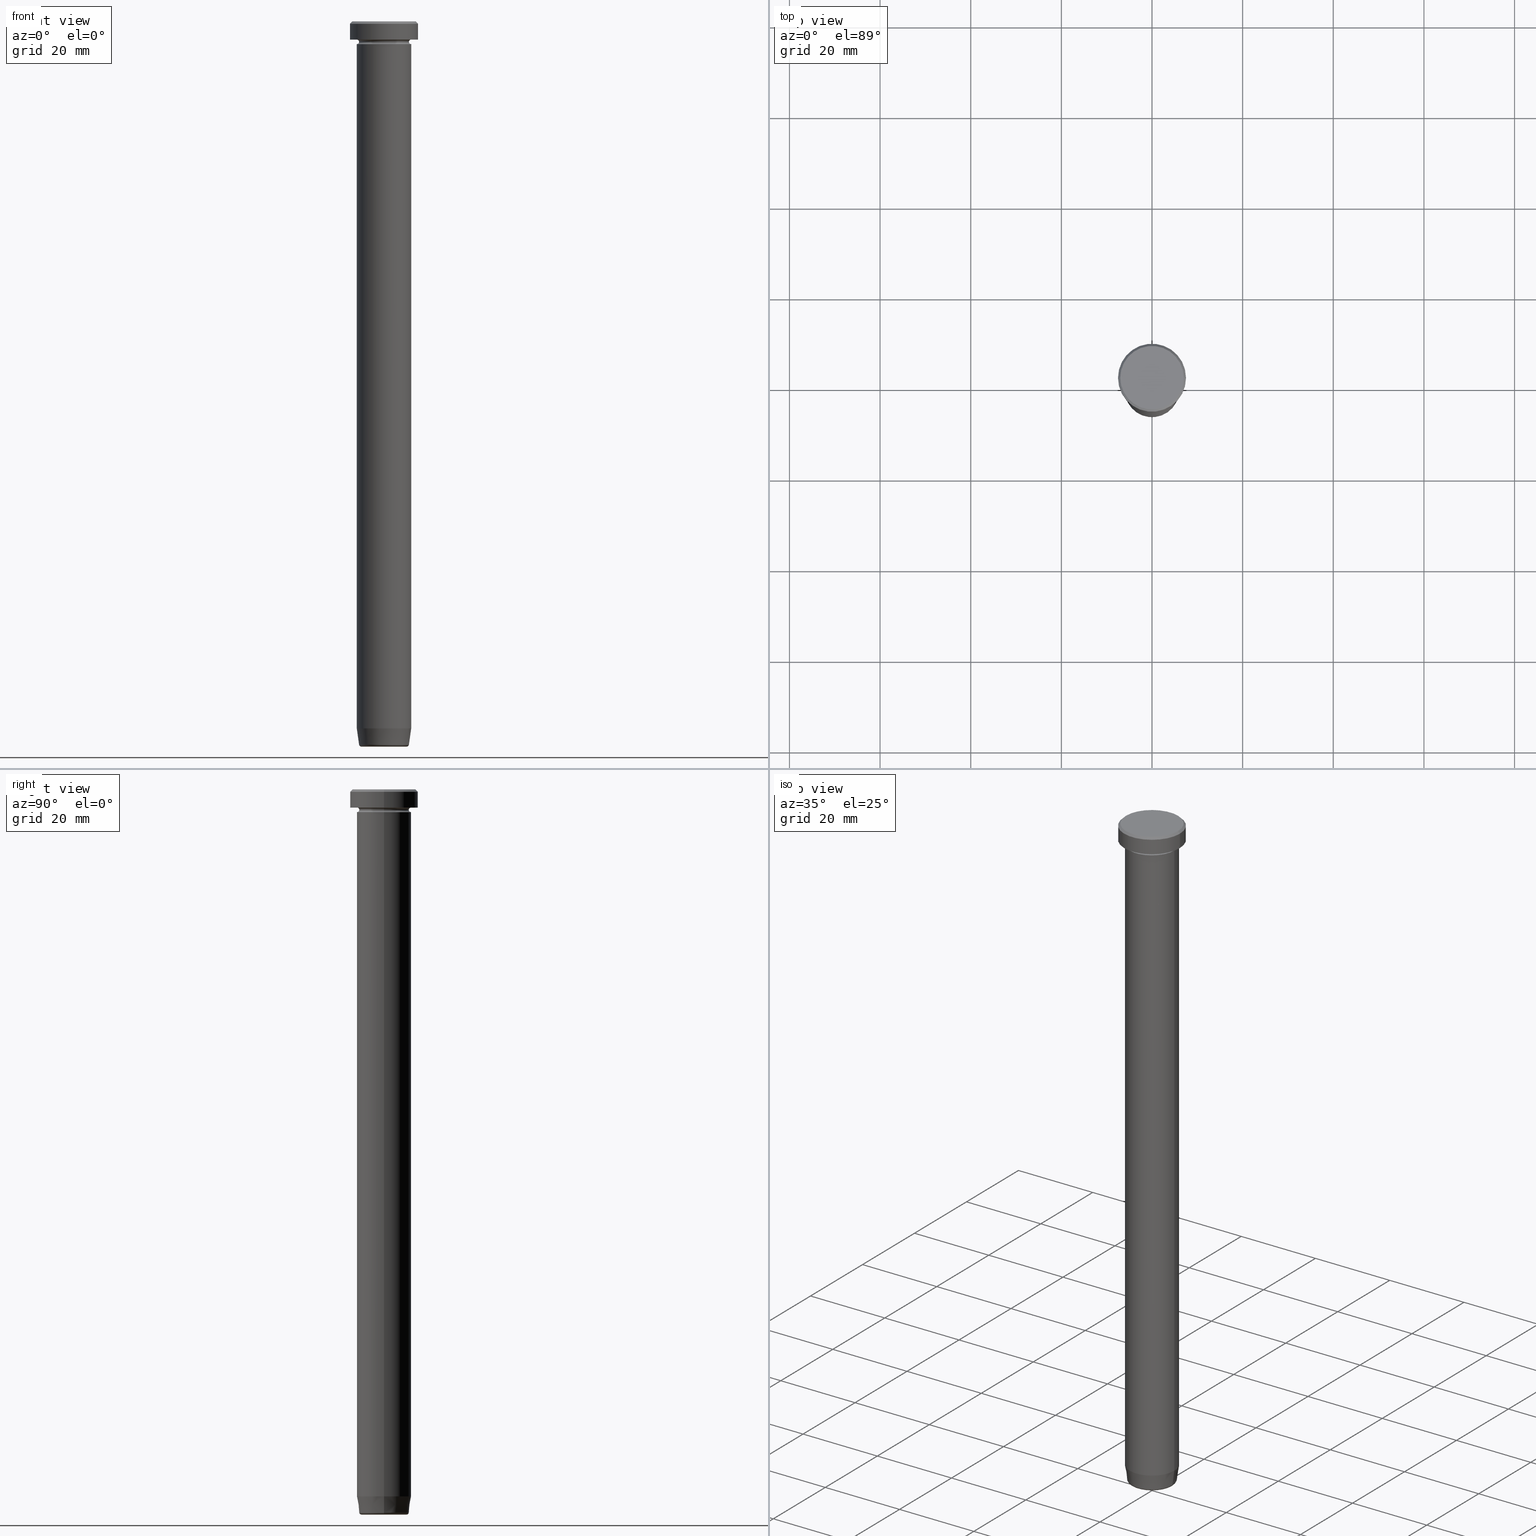
[diagram: canonical four-view strip — front | top / right | iso, engineering-drawing reading convention]
A machine part, canonical four-view strip (front | top / right | iso — engineering-drawing reading convention). The complete STEP part file that produces these views, byte-faithful:
ISO-10303-21;
HEADER;
FILE_DESCRIPTION (( 'STEP AP203' ),
    '1' );
FILE_NAME ('e191.STEP',
    '2024-01-02T19:34:42',
    ( '' ),
    ( '' ),
    'SwSTEP 2.0',
    'SolidWorks 2019',
    '' );
FILE_SCHEMA (( 'CONFIG_CONTROL_DESIGN' ));
ENDSEC;

DATA;
#1 = DIRECTION ( 'NONE',  ( -0.000000000000000000, -0.000000000000000000, 1.000000000000000000 ) ) ;
#2 = DIRECTION ( 'NONE',  ( 0.000000000000000000, 0.000000000000000000, -1.000000000000000000 ) ) ;
#3 = CARTESIAN_POINT ( 'NONE',  ( 5.498327326653105196, 0.000000000000000000, -159.5695865504800111 ) ) ;
#4 = ADVANCED_FACE ( 'NONE', ( #525 ), #209, .T. ) ;
#5 = DIRECTION ( 'NONE',  ( 0.000000000000000000, 0.000000000000000000, -1.000000000000000000 ) ) ;
#6 = DIRECTION ( 'NONE',  ( -1.000000000000000000, 0.000000000000000000, 0.000000000000000000 ) ) ;
#7 = DIRECTION ( 'NONE',  ( -1.000000000000000000, 0.000000000000000000, 0.000000000000000000 ) ) ;
#8 = DIRECTION ( 'NONE',  ( 0.000000000000000000, -1.000000000000000000, 0.000000000000000000 ) ) ;
#9 = CIRCLE ( 'NONE', #44, 6.000000000000000000 ) ;
#10 = FACE_OUTER_BOUND ( 'NONE', #118, .T. ) ;
#11 = DESIGN_CONTEXT ( 'detailed design', #553, 'design' ) ;
#12 = DIRECTION ( 'NONE',  ( -0.000000000000000000, -0.000000000000000000, 1.000000000000000000 ) ) ;
#13 = ADVANCED_FACE ( 'NONE', ( #399 ), #333, .F. ) ;
#14 = EDGE_CURVE ( 'NONE', #211, #163, #475, .T. ) ;
#15 = APPLICATION_PROTOCOL_DEFINITION ( 'international standard', 'config_control_design', 1994, #520 ) ;
#16 = ORIENTED_EDGE ( 'NONE', *, *, #494, .T. ) ;
#17 = ORIENTED_EDGE ( 'NONE', *, *, #27, .T. ) ;
#18 = AXIS2_PLACEMENT_3D ( 'NONE', #283, #270, #356 ) ;
#19 = AXIS2_PLACEMENT_3D ( 'NONE', #103, #554, #506 ) ;
#20 = DIRECTION ( 'NONE',  ( 1.000000000000000000, 0.000000000000000000, 0.000000000000000000 ) ) ;
#21 = DIRECTION ( 'NONE',  ( 1.000000000000000000, 0.000000000000000000, 0.000000000000000000 ) ) ;
#22 = DIRECTION ( 'NONE',  ( 1.000000000000000000, 0.000000000000000000, 0.000000000000000000 ) ) ;
#23 = ORIENTED_EDGE ( 'NONE', *, *, #521, .T. ) ;
#24 = ORIENTED_EDGE ( 'NONE', *, *, #598, .T. ) ;
#25 = PERSON_AND_ORGANIZATION ( #593, #579 ) ;
#26 = CIRCLE ( 'NONE', #42, 7.000000000000001776 ) ;
#27 = EDGE_CURVE ( 'NONE', #323, #163, #486, .T. ) ;
#28 = VERTEX_POINT ( 'NONE', #162 ) ;
#29 = FACE_OUTER_BOUND ( 'NONE', #451, .T. ) ;
#30 = CARTESIAN_POINT ( 'NONE',  ( -6.000000000000000000, 7.347880794884119736E-16, -5.000000000000000000 ) ) ;
#31 = PERSON_AND_ORGANIZATION ( #593, #579 ) ;
#32 = ORIENTED_EDGE ( 'NONE', *, *, #465, .T. ) ;
#33 = CIRCLE ( 'NONE', #531, 5.500000000000000000 ) ;
#34 = TOROIDAL_SURFACE ( 'NONE', #75, 5.003193292282319682, 0.5000000000000000000 ) ;
#35 = CARTESIAN_POINT ( 'NONE',  ( 0.000000000000000000, 0.000000000000000000, -159.9999999999999716 ) ) ;
#36 = EDGE_CURVE ( 'NONE', #306, #360, #455, .T. ) ;
#37 = CARTESIAN_POINT ( 'NONE',  ( -6.000000000000000000, 7.347880794884119736E-16, 0.000000000000000000 ) ) ;
#38 = ORIENTED_EDGE ( 'NONE', *, *, #472, .T. ) ;
#39 = CARTESIAN_POINT ( 'NONE',  ( 6.000000000000000000, 0.000000000000000000, 0.000000000000000000 ) ) ;
#40 = CC_DESIGN_PERSON_AND_ORGANIZATION_ASSIGNMENT ( #261, #585, ( #328 ) ) ;
#41 = FACE_OUTER_BOUND ( 'NONE', #410, .T. ) ;
#42 = AXIS2_PLACEMENT_3D ( 'NONE', #46, #379, #423 ) ;
#43 = DIRECTION ( 'NONE',  ( 1.000000000000000000, 0.000000000000000000, 0.000000000000000000 ) ) ;
#44 = AXIS2_PLACEMENT_3D ( 'NONE', #513, #412, #466 ) ;
#45 = CARTESIAN_POINT ( 'NONE',  ( 6.000000000000000000, 0.000000000000000000, 0.000000000000000000 ) ) ;
#46 = CARTESIAN_POINT ( 'NONE',  ( 0.000000000000000000, 0.000000000000000000, 0.000000000000000000 ) ) ;
#47 = DIRECTION ( 'NONE',  ( -0.000000000000000000, -0.000000000000000000, 1.000000000000000000 ) ) ;
#48 = ORIENTED_EDGE ( 'NONE', *, *, #456, .F. ) ;
#49 = CARTESIAN_POINT ( 'NONE',  ( 7.500000000000000000, 0.000000000000000000, 0.000000000000000000 ) ) ;
#50 = PLANE ( 'NONE',  #511 ) ;
#51 = VERTEX_POINT ( 'NONE', #68 ) ;
#52 = APPROVAL ( #154, 'NEUR�EN�' ) ;
#53 = DIRECTION ( 'NONE',  ( -0.000000000000000000, -0.000000000000000000, 1.000000000000000000 ) ) ;
#54 = ORIENTED_EDGE ( 'NONE', *, *, #137, .T. ) ;
#55 = CC_DESIGN_APPROVAL ( #492, ( #328 ) ) ;
#56 = ADVANCED_FACE ( 'NONE', ( #479 ), #82, .F. ) ;
#57 = CARTESIAN_POINT ( 'NONE',  ( 0.000000000000000000, 0.000000000000000000, -17.00000000000000000 ) ) ;
#58 = EDGE_CURVE ( 'NONE', #211, #576, #364, .T. ) ;
#59 = CARTESIAN_POINT ( 'NONE',  ( -6.000000000000000000, 7.347880794884119736E-16, -4.500000000000000888 ) ) ;
#60 = DIRECTION ( 'NONE',  ( 0.000000000000000000, 0.000000000000000000, 1.000000000000000000 ) ) ;
#61 = ORIENTED_EDGE ( 'NONE', *, *, #361, .T. ) ;
#62 = AXIS2_PLACEMENT_3D ( 'NONE', #374, #508, #414 ) ;
#63 = AXIS2_PLACEMENT_3D ( 'NONE', #226, #8, #2 ) ;
#64 = DIRECTION ( 'NONE',  ( -0.000000000000000000, -0.000000000000000000, 1.000000000000000000 ) ) ;
#65 = CALENDAR_DATE ( 2024, 2, 1 ) ;
#66 = ORIENTED_EDGE ( 'NONE', *, *, #382, .F. ) ;
#67 = SHAPE_DEFINITION_REPRESENTATION ( #416, #537 ) ;
#68 = CARTESIAN_POINT ( 'NONE',  ( -7.500000000000000000, 9.184850993605147944E-16, -4.000000000000000000 ) ) ;
#69 = EDGE_LOOP ( 'NONE', ( #427, #84 ) ) ;
#70 = AXIS2_PLACEMENT_3D ( 'NONE', #114, #199, #21 ) ;
#71 = ORIENTED_EDGE ( 'NONE', *, *, #282, .F. ) ;
#72 = ORIENTED_EDGE ( 'NONE', *, *, #140, .T. ) ;
#73 = AXIS2_PLACEMENT_3D ( 'NONE', #349, #535, #495 ) ;
#74 = ADVANCED_FACE ( 'NONE', ( #205 ), #595, .F. ) ;
#75 = AXIS2_PLACEMENT_3D ( 'NONE', #390, #153, #295 ) ;
#76 = DIRECTION ( 'NONE',  ( -0.000000000000000000, -0.000000000000000000, 1.000000000000000000 ) ) ;
#77 = ADVANCED_FACE ( 'NONE', ( #157 ), #388, .F. ) ;
#78 = ORIENTED_EDGE ( 'NONE', *, *, #36, .T. ) ;
#79 = CARTESIAN_POINT ( 'NONE',  ( 6.000000000000000000, 7.347880794884119736E-16, -4.500000000000000888 ) ) ;
#80 = ORIENTED_EDGE ( 'NONE', *, *, #253, .F. ) ;
#81 = CC_DESIGN_PERSON_AND_ORGANIZATION_ASSIGNMENT ( #31, #204, ( #173 ) ) ;
#82 = TOROIDAL_SURFACE ( 'NONE', #285, 6.000000000000000000, 0.5000000000000000000 ) ;
#83 = LINE ( 'NONE', #317, #468 ) ;
#84 = ORIENTED_EDGE ( 'NONE', *, *, #425, .F. ) ;
#85 = APPROVAL_PERSON_ORGANIZATION ( #170, #492, #481 ) ;
#86 = CARTESIAN_POINT ( 'NONE',  ( 0.000000000000000000, 0.000000000000000000, -4.500000000000000888 ) ) ;
#87 = CARTESIAN_POINT ( 'NONE',  ( 0.000000000000000000, 9.797174393178822896E-15, -159.9999999999999716 ) ) ;
#88 = ORIENTED_EDGE ( 'NONE', *, *, #208, .T. ) ;
#89 = DIRECTION ( 'NONE',  ( 1.000000000000000000, 0.000000000000000000, 0.000000000000000000 ) ) ;
#90 = PRODUCT ( 'e191', 'e191', '', ( #385 ) ) ;
#91 = FACE_OUTER_BOUND ( 'NONE', #201, .T. ) ;
#92 = EDGE_LOOP ( 'NONE', ( #159, #281, #431, #247 ) ) ;
#94 = AXIS2_PLACEMENT_3D ( 'NONE', #59, #534, #213 ) ;
#93 = FACE_OUTER_BOUND ( 'NONE', #474, .T. ) ;
#95 = CARTESIAN_POINT ( 'NONE',  ( 7.000000000000001776, 8.878689293818310074E-16, 0.000000000000000000 ) ) ;
#96 = CIRCLE ( 'NONE', #73, 5.500000000000000000 ) ;
#97 = CARTESIAN_POINT ( 'NONE',  ( -6.000000000000000000, 7.347880794884119736E-16, -17.00000000000000000 ) ) ;
#98 = AXIS2_PLACEMENT_3D ( 'NONE', #240, #322, #558 ) ;
#99 = PLANE ( 'NONE',  #532 ) ;
#100 = DIRECTION ( 'NONE',  ( -0.000000000000000000, -0.000000000000000000, 1.000000000000000000 ) ) ;
#101 = DIRECTION ( 'NONE',  ( -0.000000000000000000, -0.000000000000000000, 1.000000000000000000 ) ) ;
#102 = DIRECTION ( 'NONE',  ( -1.000000000000000000, 0.000000000000000000, 0.000000000000000000 ) ) ;
#103 = CARTESIAN_POINT ( 'NONE',  ( 0.000000000000000000, 0.000000000000000000, -4.000000000000000000 ) ) ;
#104 = ORIENTED_EDGE ( 'NONE', *, *, #440, .T. ) ;
#105 = EDGE_CURVE ( 'NONE', #214, #393, #538, .T. ) ;
#106 = APPROVAL_ROLE ( '' ) ;
#107 = EDGE_CURVE ( 'NONE', #323, #444, #96, .T. ) ;
#108 = DIRECTION ( 'NONE',  ( -1.000000000000000000, 0.000000000000000000, 0.000000000000000000 ) ) ;
#109 = EDGE_LOOP ( 'NONE', ( #143, #528, #418, #303 ) ) ;
#110 = FACE_OUTER_BOUND ( 'NONE', #346, .T. ) ;
#111 = ORIENTED_EDGE ( 'NONE', *, *, #27, .F. ) ;
#112 = ORIENTED_EDGE ( 'NONE', *, *, #521, .F. ) ;
#113 = CIRCLE ( 'NONE', #301, 5.498327326653105196 ) ;
#114 = CARTESIAN_POINT ( 'NONE',  ( 0.000000000000000000, 0.000000000000000000, -4.500000000000000888 ) ) ;
#115 = ORIENTED_EDGE ( 'NONE', *, *, #375, .F. ) ;
#116 = PERSON_AND_ORGANIZATION_ROLE ( 'design_owner' ) ;
#117 = ADVANCED_FACE ( 'NONE', ( #543, #175 ), #126, .T. ) ;
#118 = EDGE_LOOP ( 'NONE', ( #32, #72, #544, #71 ) ) ;
#119 = AXIS2_PLACEMENT_3D ( 'NONE', #266, #262, #438 ) ;
#120 = CARTESIAN_POINT ( 'NONE',  ( 6.000000000000000000, 0.000000000000000000, -5.000000000000000000 ) ) ;
#121 = ORIENTED_EDGE ( 'NONE', *, *, #355, .T. ) ;
#122 = AXIS2_PLACEMENT_3D ( 'NONE', #464, #100, #43 ) ;
#123 =( GEOMETRIC_REPRESENTATION_CONTEXT ( 3 ) GLOBAL_UNCERTAINTY_ASSIGNED_CONTEXT ( ( #245 ) ) GLOBAL_UNIT_ASSIGNED_CONTEXT ( ( #522, #478, #524 ) ) REPRESENTATION_CONTEXT ( 'NONE', 'WORKASPACE' ) );
#124 = CARTESIAN_POINT ( 'NONE',  ( -6.000000000000000000, 7.347880794884119736E-16, -17.00000000000000000 ) ) ;
#125 = APPROVAL_DATE_TIME ( #127, #52 ) ;
#126 = PLANE ( 'NONE',  #577 ) ;
#127 = DATE_AND_TIME ( #65, #589 ) ;
#128 = EDGE_LOOP ( 'NONE', ( #104, #296, #402, #80 ) ) ;
#129 = EDGE_CURVE ( 'NONE', #163, #276, #133, .T. ) ;
#130 = LINE ( 'NONE', #45, #180 ) ;
#131 = EDGE_CURVE ( 'NONE', #444, #439, #599, .T. ) ;
#132 = CC_DESIGN_DATE_AND_TIME_ASSIGNMENT ( #447, #219, ( #328 ) ) ;
#133 = CIRCLE ( 'NONE', #155, 6.000000000000000000 ) ;
#134 = CIRCLE ( 'NONE', #232, 6.000000000000000000 ) ;
#135 = CC_DESIGN_SECURITY_CLASSIFICATION ( #328, ( #173 ) ) ;
#136 = DIRECTION ( 'NONE',  ( -1.000000000000000000, -1.224646799147351482E-16, 0.000000000000000000 ) ) ;
#137 = EDGE_CURVE ( 'NONE', #444, #276, #188, .T. ) ;
#138 = DIRECTION ( 'NONE',  ( 1.000000000000000000, 0.000000000000000000, 0.000000000000000000 ) ) ;
#139 = ORIENTED_EDGE ( 'NONE', *, *, #324, .F. ) ;
#140 = EDGE_CURVE ( 'NONE', #28, #251, #83, .T. ) ;
#141 = CARTESIAN_POINT ( 'NONE',  ( 0.000000000000000000, 0.000000000000000000, -159.9999999999999716 ) ) ;
#142 = CARTESIAN_POINT ( 'NONE',  ( 0.000000000000000000, 0.000000000000000000, 0.000000000000000000 ) ) ;
#143 = ORIENTED_EDGE ( 'NONE', *, *, #208, .F. ) ;
#144 = DIRECTION ( 'NONE',  ( -0.000000000000000000, -0.000000000000000000, 1.000000000000000000 ) ) ;
#145 = CARTESIAN_POINT ( 'NONE',  ( -7.000000000000001776, 0.000000000000000000, 0.000000000000000000 ) ) ;
#146 = AXIS2_PLACEMENT_3D ( 'NONE', #79, #590, #136 ) ;
#147 = CARTESIAN_POINT ( 'NONE',  ( 0.000000000000000000, 0.000000000000000000, -159.5695865504800111 ) ) ;
#148 = CIRCLE ( 'NONE', #368, 5.498327326653105196 ) ;
#149 = DIRECTION ( 'NONE',  ( 0.000000000000000000, -0.000000000000000000, 1.000000000000000000 ) ) ;
#150 = CARTESIAN_POINT ( 'NONE',  ( 0.000000000000000000, 0.000000000000000000, -155.9999999999999716 ) ) ;
#151 = CARTESIAN_POINT ( 'NONE',  ( 0.000000000000000000, 0.000000000000000000, 0.000000000000000000 ) ) ;
#152 = EDGE_CURVE ( 'NONE', #51, #306, #445, .T. ) ;
#153 = DIRECTION ( 'NONE',  ( -0.000000000000000000, -0.000000000000000000, 1.000000000000000000 ) ) ;
#154 = APPROVAL_STATUS ( 'not_yet_approved' ) ;
#155 = AXIS2_PLACEMENT_3D ( 'NONE', #403, #550, #312 ) ;
#156 = AXIS2_PLACEMENT_3D ( 'NONE', #555, #101, #289 ) ;
#157 = FACE_OUTER_BOUND ( 'NONE', #505, .T. ) ;
#158 = ORIENTED_EDGE ( 'NONE', *, *, #336, .T. ) ;
#159 = ORIENTED_EDGE ( 'NONE', *, *, #140, .F. ) ;
#160 = APPROVAL_ROLE ( '' ) ;
#161 = VERTEX_POINT ( 'NONE', #591 ) ;
#162 = CARTESIAN_POINT ( 'NONE',  ( -5.498327326653105196, 7.040694878067135709E-16, -159.5695865504800111 ) ) ;
#163 = VERTEX_POINT ( 'NONE', #30 ) ;
#164 = TOROIDAL_SURFACE ( 'NONE', #337, 5.003193292282319682, 0.5000000000000000000 ) ;
#165 = DIRECTION ( 'NONE',  ( 1.000000000000000000, 0.000000000000000000, 0.000000000000000000 ) ) ;
#166 = ADVANCED_FACE ( 'NONE', ( #491 ), #169, .T. ) ;
#167 = DIRECTION ( 'NONE',  ( -0.000000000000000000, -0.000000000000000000, 1.000000000000000000 ) ) ;
#168 = ORIENTED_EDGE ( 'NONE', *, *, #465, .F. ) ;
#169 = CYLINDRICAL_SURFACE ( 'NONE', #18, 6.000000000000000000 ) ;
#170 = PERSON_AND_ORGANIZATION ( #593, #579 ) ;
#171 = ORIENTED_EDGE ( 'NONE', *, *, #435, .T. ) ;
#172 = AXIS2_PLACEMENT_3D ( 'NONE', #151, #557, #294 ) ;
#173 = PRODUCT_DEFINITION_FORMATION_WITH_SPECIFIED_SOURCE ( 'LIBOVOLN�', '', #90, .NOT_KNOWN. ) ;
#174 = CARTESIAN_POINT ( 'NONE',  ( 6.000000000000000000, 0.000000000000000000, -17.00000000000000000 ) ) ;
#175 = FACE_OUTER_BOUND ( 'NONE', #69, .T. ) ;
#176 = EDGE_CURVE ( 'NONE', #367, #381, #257, .T. ) ;
#177 = LINE ( 'NONE', #39, #345 ) ;
#178 = CARTESIAN_POINT ( 'NONE',  ( 6.000000000000000000, 0.000000000000000000, -17.00000000000000000 ) ) ;
#179 = ORIENTED_EDGE ( 'NONE', *, *, #131, .F. ) ;
#180 = VECTOR ( 'NONE', #182, 1000.000000000000000 ) ;
#181 = CARTESIAN_POINT ( 'NONE',  ( 0.000000000000000000, 0.000000000000000000, -4.500000000000000888 ) ) ;
#182 = DIRECTION ( 'NONE',  ( -0.000000000000000000, -0.000000000000000000, 1.000000000000000000 ) ) ;
#183 = ORIENTED_EDGE ( 'NONE', *, *, #216, .F. ) ;
#184 = DIRECTION ( 'NONE',  ( 0.1391731009600656876, 0.000000000000000000, 0.9902680687415703620 ) ) ;
#185 = CARTESIAN_POINT ( 'NONE',  ( 0.000000000000000000, 0.000000000000000000, 0.000000000000000000 ) ) ;
#186 = DIRECTION ( 'NONE',  ( 0.000000000000000000, 0.000000000000000000, -1.000000000000000000 ) ) ;
#187 = DIRECTION ( 'NONE',  ( 1.000000000000000000, 0.000000000000000000, 0.000000000000000000 ) ) ;
#188 = CIRCLE ( 'NONE', #305, 0.5000000000000004441 ) ;
#189 = DIRECTION ( 'NONE',  ( 1.000000000000000000, 0.000000000000000000, 0.000000000000000000 ) ) ;
#190 = CC_DESIGN_APPROVAL ( #244, ( #483 ) ) ;
#191 = DIRECTION ( 'NONE',  ( -0.000000000000000000, -0.000000000000000000, 1.000000000000000000 ) ) ;
#192 = ORIENTED_EDGE ( 'NONE', *, *, #252, .T. ) ;
#193 = ADVANCED_FACE ( 'NONE', ( #542 ), #224, .T. ) ;
#194 = DIRECTION ( 'NONE',  ( -0.000000000000000000, -0.000000000000000000, 1.000000000000000000 ) ) ;
#195 = MANIFOLD_SOLID_BREP ( 'Zaoblit4', #392 ) ;
#196 = AXIS2_PLACEMENT_3D ( 'NONE', #575, #340, #397 ) ;
#197 = ORIENTED_EDGE ( 'NONE', *, *, #472, .F. ) ;
#198 = CIRCLE ( 'NONE', #335, 6.000000000000000000 ) ;
#199 = DIRECTION ( 'NONE',  ( -0.000000000000000000, -0.000000000000000000, 1.000000000000000000 ) ) ;
#200 = DATE_TIME_ROLE ( 'creation_date' ) ;
#201 = EDGE_LOOP ( 'NONE', ( #121, #331, #493, #112 ) ) ;
#202 = CARTESIAN_POINT ( 'NONE',  ( 0.000000000000000000, 0.000000000000000000, -4.500000000000000888 ) ) ;
#203 = ORIENTED_EDGE ( 'NONE', *, *, #324, .T. ) ;
#204 = PERSON_AND_ORGANIZATION_ROLE ( 'design_supplier' ) ;
#205 = FACE_OUTER_BOUND ( 'NONE', #434, .T. ) ;
#206 = ORIENTED_EDGE ( 'NONE', *, *, #36, .F. ) ;
#207 = APPLICATION_PROTOCOL_DEFINITION ( 'international standard', 'config_control_design', 1994, #553 ) ;
#208 = EDGE_CURVE ( 'NONE', #498, #360, #308, .T. ) ;
#209 = CYLINDRICAL_SURFACE ( 'NONE', #119, 6.000000000000000000 ) ;
#210 = VECTOR ( 'NONE', #76, 1000.000000000000000 ) ;
#211 = VERTEX_POINT ( 'NONE', #124 ) ;
#212 = CIRCLE ( 'NONE', #570, 0.5000000000000004441 ) ;
#213 = DIRECTION ( 'NONE',  ( -1.000000000000000000, 1.224646799147351482E-16, 0.000000000000000000 ) ) ;
#214 = VERTEX_POINT ( 'NONE', #174 ) ;
#215 = DIRECTION ( 'NONE',  ( 0.000000000000000000, 0.000000000000000000, -1.000000000000000000 ) ) ;
#216 = EDGE_CURVE ( 'NONE', #381, #367, #428, .T. ) ;
#217 = SECURITY_CLASSIFICATION_LEVEL ( 'unclassified' ) ;
#218 = DIRECTION ( 'NONE',  ( 0.000000000000000000, 0.000000000000000000, -1.000000000000000000 ) ) ;
#219 = DATE_TIME_ROLE ( 'classification_date' ) ;
#220 = ORIENTED_EDGE ( 'NONE', *, *, #105, .T. ) ;
#221 = CIRCLE ( 'NONE', #561, 6.000000000000000000 ) ;
#222 = AXIS2_PLACEMENT_3D ( 'NONE', #504, #191, #187 ) ;
#223 = CC_DESIGN_DATE_AND_TIME_ASSIGNMENT ( #256, #200, ( #483 ) ) ;
#224 = CYLINDRICAL_SURFACE ( 'NONE', #241, 6.000000000000000000 ) ;
#225 = CARTESIAN_POINT ( 'NONE',  ( -6.000000000000000000, 7.347880794884119736E-16, -155.9999999999999716 ) ) ;
#226 = CARTESIAN_POINT ( 'NONE',  ( 5.003193292282319682, 0.000000000000000000, -159.4999999999999716 ) ) ;
#227 = ORIENTED_EDGE ( 'NONE', *, *, #129, .T. ) ;
#228 = COORDINATED_UNIVERSAL_TIME_OFFSET ( 1, 0, .AHEAD. ) ;
#229 = DIRECTION ( 'NONE',  ( -1.000000000000000000, 0.000000000000000000, -0.000000000000000000 ) ) ;
#230 = ORIENTED_EDGE ( 'NONE', *, *, #107, .T. ) ;
#231 = CALENDAR_DATE ( 2024, 2, 1 ) ;
#232 = AXIS2_PLACEMENT_3D ( 'NONE', #57, #194, #189 ) ;
#233 = CIRCLE ( 'NONE', #98, 0.5000000000000004441 ) ;
#234 = DIRECTION ( 'NONE',  ( -0.000000000000000000, -1.000000000000000000, -0.000000000000000000 ) ) ;
#235 = FACE_OUTER_BOUND ( 'NONE', #583, .T. ) ;
#236 = FACE_OUTER_BOUND ( 'NONE', #109, .T. ) ;
#237 = CARTESIAN_POINT ( 'NONE',  ( 5.500000000000000000, 0.000000000000000000, -4.500000000000000888 ) ) ;
#238 = ORIENTED_EDGE ( 'NONE', *, *, #152, .T. ) ;
#239 = DIRECTION ( 'NONE',  ( 1.000000000000000000, 0.000000000000000000, 0.000000000000000000 ) ) ;
#240 = CARTESIAN_POINT ( 'NONE',  ( -5.003193292282319682, 6.127144650909050131E-16, -159.4999999999999716 ) ) ;
#241 = AXIS2_PLACEMENT_3D ( 'NONE', #503, #584, #406 ) ;
#242 = FACE_OUTER_BOUND ( 'NONE', #92, .T. ) ;
#243 = ADVANCED_FACE ( 'NONE', ( #29 ), #477, .F. ) ;
#244 = APPROVAL ( #339, 'NEUR�EN�' ) ;
#245 = UNCERTAINTY_MEASURE_WITH_UNIT (LENGTH_MEASURE( 1.000000000000000082E-05 ), #522, 'distance_accuracy_value', 'NONE');
#246 = CIRCLE ( 'NONE', #437, 6.000000000000000000 ) ;
#247 = ORIENTED_EDGE ( 'NONE', *, *, #598, .F. ) ;
#248 = DATE_AND_TIME ( #231, #490 ) ;
#249 = EDGE_CURVE ( 'NONE', #251, #393, #443, .T. ) ;
#250 = CARTESIAN_POINT ( 'NONE',  ( -5.003193292282319682, 6.430326806079599427E-16, -159.9999999999999716 ) ) ;
#251 = VERTEX_POINT ( 'NONE', #225 ) ;
#252 = EDGE_CURVE ( 'NONE', #360, #306, #267, .T. ) ;
#253 = EDGE_CURVE ( 'NONE', #576, #276, #177, .T. ) ;
#254 = DIRECTION ( 'NONE',  ( 1.000000000000000000, 0.000000000000000000, 0.000000000000000000 ) ) ;
#255 = CARTESIAN_POINT ( 'NONE',  ( 0.000000000000000000, 0.000000000000000000, -4.500000000000000888 ) ) ;
#256 = DATE_AND_TIME ( #566, #429 ) ;
#257 = CIRCLE ( 'NONE', #421, 5.003193292282319682 ) ;
#258 = DIRECTION ( 'NONE',  ( -0.000000000000000000, -0.000000000000000000, 1.000000000000000000 ) ) ;
#259 = CIRCLE ( 'NONE', #461, 7.000000000000001776 ) ;
#260 = VERTEX_POINT ( 'NONE', #352 ) ;
#261 = PERSON_AND_ORGANIZATION ( #593, #579 ) ;
#262 = DIRECTION ( 'NONE',  ( -0.000000000000000000, -0.000000000000000000, 1.000000000000000000 ) ) ;
#263 = ORIENTED_EDGE ( 'NONE', *, *, #137, .F. ) ;
#264 = ORIENTED_EDGE ( 'NONE', *, *, #540, .F. ) ;
#265 = EDGE_LOOP ( 'NONE', ( #158, #273 ) ) ;
#266 = CARTESIAN_POINT ( 'NONE',  ( 0.000000000000000000, 0.000000000000000000, 0.000000000000000000 ) ) ;
#267 = CIRCLE ( 'NONE', #293, 7.500000000000000000 ) ;
#268 = VERTEX_POINT ( 'NONE', #539 ) ;
#269 = AXIS2_PLACEMENT_3D ( 'NONE', #315, #5, #280 ) ;
#270 = DIRECTION ( 'NONE',  ( -0.000000000000000000, -0.000000000000000000, 1.000000000000000000 ) ) ;
#271 = ORIENTED_EDGE ( 'NONE', *, *, #129, .F. ) ;
#272 = DIRECTION ( 'NONE',  ( -0.1391731009600656876, 1.704378926181559063E-17, 0.9902680687415703620 ) ) ;
#273 = ORIENTED_EDGE ( 'NONE', *, *, #456, .T. ) ;
#274 = CARTESIAN_POINT ( 'NONE',  ( -7.500000000000000000, 9.184850993605147944E-16, 0.000000000000000000 ) ) ;
#275 = CALENDAR_DATE ( 2024, 2, 1 ) ;
#276 = VERTEX_POINT ( 'NONE', #120 ) ;
#277 = VECTOR ( 'NONE', #184, 999.9999999999998863 ) ;
#278 = DIRECTION ( 'NONE',  ( 0.000000000000000000, 0.000000000000000000, -1.000000000000000000 ) ) ;
#279 = COORDINATED_UNIVERSAL_TIME_OFFSET ( 1, 0, .AHEAD. ) ;
#280 = DIRECTION ( 'NONE',  ( -1.000000000000000000, 0.000000000000000000, -0.000000000000000000 ) ) ;
#281 = ORIENTED_EDGE ( 'NONE', *, *, #417, .T. ) ;
#282 = EDGE_CURVE ( 'NONE', #297, #161, #304, .T. ) ;
#283 = CARTESIAN_POINT ( 'NONE',  ( 0.000000000000000000, 0.000000000000000000, 0.000000000000000000 ) ) ;
#284 = ORIENTED_EDGE ( 'NONE', *, *, #176, .T. ) ;
#285 = AXIS2_PLACEMENT_3D ( 'NONE', #255, #64, #432 ) ;
#286 = CARTESIAN_POINT ( 'NONE',  ( -5.500000000000000000, 7.041719095097280880E-16, -4.500000000000000888 ) ) ;
#287 = CARTESIAN_POINT ( 'NONE',  ( 0.000000000000000000, 0.000000000000000000, -159.4999999999999716 ) ) ;
#288 = CC_DESIGN_APPROVAL ( #52, ( #173 ) ) ;
#289 = DIRECTION ( 'NONE',  ( 1.000000000000000000, 0.000000000000000000, 0.000000000000000000 ) ) ;
#290 = DIRECTION ( 'NONE',  ( -1.000000000000000000, 0.000000000000000000, 0.000000000000000000 ) ) ;
#291 = CYLINDRICAL_SURFACE ( 'NONE', #222, 7.500000000000000000 ) ;
#292 = DIRECTION ( 'NONE',  ( -0.000000000000000000, -0.000000000000000000, 1.000000000000000000 ) ) ;
#293 = AXIS2_PLACEMENT_3D ( 'NONE', #594, #411, #365 ) ;
#294 = DIRECTION ( 'NONE',  ( -1.000000000000000000, 0.000000000000000000, 0.000000000000000000 ) ) ;
#295 = DIRECTION ( 'NONE',  ( 1.000000000000000000, 0.000000000000000000, 0.000000000000000000 ) ) ;
#296 = ORIENTED_EDGE ( 'NONE', *, *, #14, .T. ) ;
#297 = VERTEX_POINT ( 'NONE', #3 ) ;
#298 = ORIENTED_EDGE ( 'NONE', *, *, #592, .F. ) ;
#299 = VECTOR ( 'NONE', #144, 1000.000000000000000 ) ;
#300 = DIRECTION ( 'NONE',  ( -0.000000000000000000, -0.000000000000000000, 1.000000000000000000 ) ) ;
#301 = AXIS2_PLACEMENT_3D ( 'NONE', #147, #329, #290 ) ;
#302 = CARTESIAN_POINT ( 'NONE',  ( 0.000000000000000000, 0.000000000000000000, -17.00000000000000000 ) ) ;
#303 = ORIENTED_EDGE ( 'NONE', *, *, #252, .F. ) ;
#304 = LINE ( 'NONE', #419, #277 ) ;
#305 = AXIS2_PLACEMENT_3D ( 'NONE', #499, #497, #218 ) ;
#306 = VERTEX_POINT ( 'NONE', #325 ) ;
#307 = CIRCLE ( 'NONE', #63, 0.5000000000000004441 ) ;
#308 = LINE ( 'NONE', #359, #387 ) ;
#309 = PERSON_AND_ORGANIZATION_ROLE ( 'creator' ) ;
#310 = ADVANCED_FACE ( 'NONE', ( #93 ), #371, .T. ) ;
#311 = DIRECTION ( 'NONE',  ( 0.000000000000000000, 0.000000000000000000, -1.000000000000000000 ) ) ;
#312 = DIRECTION ( 'NONE',  ( 1.000000000000000000, 0.000000000000000000, 0.000000000000000000 ) ) ;
#313 = EDGE_CURVE ( 'NONE', #393, #214, #134, .T. ) ;
#314 = CALENDAR_DATE ( 2024, 2, 1 ) ;
#315 = CARTESIAN_POINT ( 'NONE',  ( 0.000000000000000000, 6.000000000000000000, -17.00000000000000000 ) ) ;
#316 = APPROVAL_PERSON_ORGANIZATION ( #386, #244, #106 ) ;
#317 = CARTESIAN_POINT ( 'NONE',  ( -5.437836661190432963, 6.659429261412994003E-16, -159.9999999999999716 ) ) ;
#318 = DIRECTION ( 'NONE',  ( -0.000000000000000000, -0.000000000000000000, 1.000000000000000000 ) ) ;
#319 = EDGE_LOOP ( 'NONE', ( #363, #400, #433, #271 ) ) ;
#320 = CC_DESIGN_PERSON_AND_ORGANIZATION_ASSIGNMENT ( #395, #384, ( #483 ) ) ;
#321 = DIRECTION ( 'NONE',  ( 1.000000000000000000, 0.000000000000000000, 0.000000000000000000 ) ) ;
#322 = DIRECTION ( 'NONE',  ( 1.224646799147353207E-16, 1.000000000000000000, 0.000000000000000000 ) ) ;
#323 = VERTEX_POINT ( 'NONE', #286 ) ;
#324 = EDGE_CURVE ( 'NONE', #439, #454, #198, .T. ) ;
#325 = CARTESIAN_POINT ( 'NONE',  ( -7.500000000000000000, 9.184850993605147944E-16, -0.4999999999999987232 ) ) ;
#326 = DIRECTION ( 'NONE',  ( 1.000000000000000000, 0.000000000000000000, 0.000000000000000000 ) ) ;
#327 = AXIS2_PLACEMENT_3D ( 'NONE', #462, #1, #321 ) ;
#328 = SECURITY_CLASSIFICATION ( '', '', #217 ) ;
#329 = DIRECTION ( 'NONE',  ( -0.000000000000000000, -0.000000000000000000, 1.000000000000000000 ) ) ;
#330 = DIRECTION ( 'NONE',  ( 1.000000000000000000, 0.000000000000000000, 0.000000000000000000 ) ) ;
#331 = ORIENTED_EDGE ( 'NONE', *, *, #249, .T. ) ;
#332 = FACE_OUTER_BOUND ( 'NONE', #488, .T. ) ;
#333 = TOROIDAL_SURFACE ( 'NONE', #547, 6.000000000000000000, 0.5000000000000000000 ) ;
#334 = CARTESIAN_POINT ( 'NONE',  ( 7.500000000000000000, 0.000000000000000000, -0.4999999999999987232 ) ) ;
#335 = AXIS2_PLACEMENT_3D ( 'NONE', #383, #292, #6 ) ;
#336 = EDGE_CURVE ( 'NONE', #260, #498, #26, .T. ) ;
#337 = AXIS2_PLACEMENT_3D ( 'NONE', #287, #458, #326 ) ;
#338 = CARTESIAN_POINT ( 'NONE',  ( 0.000000000000000000, 0.000000000000000000, -4.000000000000000000 ) ) ;
#339 = APPROVAL_STATUS ( 'not_yet_approved' ) ;
#340 = DIRECTION ( 'NONE',  ( 0.000000000000000000, 0.000000000000000000, -1.000000000000000000 ) ) ;
#341 = PERSON_AND_ORGANIZATION ( #593, #579 ) ;
#342 = ORIENTED_EDGE ( 'NONE', *, *, #435, .F. ) ;
#343 = AXIS2_PLACEMENT_3D ( 'NONE', #573, #582, #165 ) ;
#344 = COORDINATED_UNIVERSAL_TIME_OFFSET ( 1, 0, .AHEAD. ) ;
#345 = VECTOR ( 'NONE', #167, 1000.000000000000000 ) ;
#346 = EDGE_LOOP ( 'NONE', ( #183, #16, #168, #197 ) ) ;
#347 = LOCAL_TIME ( 20, 34, 42.00000000000000000, #546 ) ;
#348 = ORIENTED_EDGE ( 'NONE', *, *, #249, .F. ) ;
#349 = CARTESIAN_POINT ( 'NONE',  ( 0.000000000000000000, 0.000000000000000000, -4.500000000000000888 ) ) ;
#350 = ADVANCED_FACE ( 'NONE', ( #236 ), #436, .T. ) ;
#351 = ADVANCED_FACE ( 'NONE', ( #332 ), #377, .T. ) ;
#352 = CARTESIAN_POINT ( 'NONE',  ( -7.000000000000001776, 0.000000000000000000, 0.000000000000000000 ) ) ;
#353 = ADVANCED_FACE ( 'NONE', ( #10 ), #588, .T. ) ;
#354 = EDGE_LOOP ( 'NONE', ( #111, #66, #54, #61 ) ) ;
#355 = EDGE_CURVE ( 'NONE', #161, #251, #510, .T. ) ;
#356 = DIRECTION ( 'NONE',  ( 1.000000000000000000, 0.000000000000000000, 0.000000000000000000 ) ) ;
#357 = EDGE_LOOP ( 'NONE', ( #284, #480 ) ) ;
#358 = AXIS2_PLACEMENT_3D ( 'NONE', #376, #47, #507 ) ;
#359 = CARTESIAN_POINT ( 'NONE',  ( 7.000000000000001776, 8.572527594031474176E-16, 0.000000000000000000 ) ) ;
#360 = VERTEX_POINT ( 'NONE', #334 ) ;
#361 = EDGE_CURVE ( 'NONE', #276, #163, #221, .T. ) ;
#362 = DIRECTION ( 'NONE',  ( 1.000000000000000000, 0.000000000000000000, 0.000000000000000000 ) ) ;
#363 = ORIENTED_EDGE ( 'NONE', *, *, #14, .F. ) ;
#364 = CIRCLE ( 'NONE', #515, 6.000000000000000000 ) ;
#365 = DIRECTION ( 'NONE',  ( 1.000000000000000000, 0.000000000000000000, 0.000000000000000000 ) ) ;
#366 = CARTESIAN_POINT ( 'NONE',  ( -6.000000000000000000, 0.000000000000000000, -4.000000000000000000 ) ) ;
#367 = VERTEX_POINT ( 'NONE', #470 ) ;
#368 = AXIS2_PLACEMENT_3D ( 'NONE', #560, #318, #7 ) ;
#369 = DIRECTION ( 'NONE',  ( -0.000000000000000000, -0.000000000000000000, 1.000000000000000000 ) ) ;
#370 = ORIENTED_EDGE ( 'NONE', *, *, #131, .T. ) ;
#371 = CYLINDRICAL_SURFACE ( 'NONE', #122, 7.500000000000000000 ) ;
#372 = LINE ( 'NONE', #145, #551 ) ;
#373 = CLOSED_SHELL ( 'NONE', ( #351, #243, #74, #193, #485, #529, #533, #310, #117, #166, #56, #13, #350 ) ) ;
#374 = CARTESIAN_POINT ( 'NONE',  ( 0.000000000000000000, 0.000000000000000000, -155.9999999999999716 ) ) ;
#375 = EDGE_CURVE ( 'NONE', #268, #360, #518, .T. ) ;
#376 = CARTESIAN_POINT ( 'NONE',  ( 0.000000000000000000, 0.000000000000000000, 0.000000000000000000 ) ) ;
#377 = CONICAL_SURFACE ( 'NONE', #172, 7.000000000000001776, 0.7853981633974473908 ) ;
#378 = CIRCLE ( 'NONE', #413, 6.000000000000000000 ) ;
#379 = DIRECTION ( 'NONE',  ( -0.000000000000000000, -0.000000000000000000, 1.000000000000000000 ) ) ;
#380 = CYLINDRICAL_SURFACE ( 'NONE', #358, 6.000000000000000000 ) ;
#381 = VERTEX_POINT ( 'NONE', #250 ) ;
#382 = EDGE_CURVE ( 'NONE', #444, #323, #33, .T. ) ;
#383 = CARTESIAN_POINT ( 'NONE',  ( 0.000000000000000000, 0.000000000000000000, -4.000000000000000000 ) ) ;
#384 = PERSON_AND_ORGANIZATION_ROLE ( 'creator' ) ;
#385 = MECHANICAL_CONTEXT ( 'NONE', #520, 'mechanical' ) ;
#386 = PERSON_AND_ORGANIZATION ( #593, #579 ) ;
#387 = VECTOR ( 'NONE', #545, 1000.000000000000114 ) ;
#388 = PLANE ( 'NONE',  #196 ) ;
#389 = ORIENTED_EDGE ( 'NONE', *, *, #313, .F. ) ;
#390 = CARTESIAN_POINT ( 'NONE',  ( 0.000000000000000000, 0.000000000000000000, -159.4999999999999716 ) ) ;
#391 = DIRECTION ( 'NONE',  ( 0.000000000000000000, 0.000000000000000000, -1.000000000000000000 ) ) ;
#392 = CLOSED_SHELL ( 'NONE', ( #578, #353, #489, #77, #4, #420, #567, #516 ) ) ;
#393 = VERTEX_POINT ( 'NONE', #97 ) ;
#394 = CC_DESIGN_PERSON_AND_ORGANIZATION_ASSIGNMENT ( #408, #309, ( #173 ) ) ;
#395 = PERSON_AND_ORGANIZATION ( #593, #579 ) ;
#396 = ORIENTED_EDGE ( 'NONE', *, *, #107, .F. ) ;
#397 = DIRECTION ( 'NONE',  ( -1.000000000000000000, 0.000000000000000000, -0.000000000000000000 ) ) ;
#398 = CIRCLE ( 'NONE', #19, 7.500000000000000000 ) ;
#399 = FACE_OUTER_BOUND ( 'NONE', #586, .T. ) ;
#400 = ORIENTED_EDGE ( 'NONE', *, *, #58, .T. ) ;
#401 = DIRECTION ( 'NONE',  ( -1.000000000000000000, 0.000000000000000000, 0.000000000000000000 ) ) ;
#402 = ORIENTED_EDGE ( 'NONE', *, *, #361, .F. ) ;
#403 = CARTESIAN_POINT ( 'NONE',  ( 0.000000000000000000, 0.000000000000000000, -5.000000000000000000 ) ) ;
#404 = EDGE_LOOP ( 'NONE', ( #530, #203 ) ) ;
#405 = APPROVAL_PERSON_ORGANIZATION ( #341, #52, #160 ) ;
#406 = DIRECTION ( 'NONE',  ( 1.000000000000000000, 0.000000000000000000, 0.000000000000000000 ) ) ;
#407 = DIRECTION ( 'NONE',  ( 0.000000000000000000, 0.000000000000000000, -1.000000000000000000 ) ) ;
#408 = PERSON_AND_ORGANIZATION ( #593, #579 ) ;
#409 = DIRECTION ( 'NONE',  ( -0.7071067811865469066, 0.000000000000000000, -0.7071067811865481278 ) ) ;
#410 = EDGE_LOOP ( 'NONE', ( #574, #523, #38, #536 ) ) ;
#411 = DIRECTION ( 'NONE',  ( 0.000000000000000000, 0.000000000000000000, -1.000000000000000000 ) ) ;
#412 = DIRECTION ( 'NONE',  ( -0.000000000000000000, -0.000000000000000000, 1.000000000000000000 ) ) ;
#413 = AXIS2_PLACEMENT_3D ( 'NONE', #338, #12, #564 ) ;
#414 = DIRECTION ( 'NONE',  ( 1.000000000000000000, 0.000000000000000000, 0.000000000000000000 ) ) ;
#415 = PLANE ( 'NONE',  #269 ) ;
#416 = PRODUCT_DEFINITION_SHAPE ( 'NONE', 'NONE',  #483 ) ;
#417 = EDGE_CURVE ( 'NONE', #28, #297, #113, .T. ) ;
#418 = ORIENTED_EDGE ( 'NONE', *, *, #540, .T. ) ;
#419 = CARTESIAN_POINT ( 'NONE',  ( 5.437836661190432963, 0.000000000000000000, -159.9999999999999716 ) ) ;
#420 = ADVANCED_FACE ( 'NONE', ( #242 ), #541, .T. ) ;
#421 = AXIS2_PLACEMENT_3D ( 'NONE', #35, #215, #362 ) ;
#422 = LOCAL_TIME ( 20, 34, 42.00000000000000000, #279 ) ;
#423 = DIRECTION ( 'NONE',  ( 1.000000000000000000, 0.000000000000000000, 0.000000000000000000 ) ) ;
#424 = AXIS2_PLACEMENT_3D ( 'NONE', #302, #484, #580 ) ;
#425 = EDGE_CURVE ( 'NONE', #51, #268, #398, .T. ) ;
#426 = CARTESIAN_POINT ( 'NONE',  ( 0.000000000000000000, 0.000000000000000000, -17.00000000000000000 ) ) ;
#427 = ORIENTED_EDGE ( 'NONE', *, *, #460, .F. ) ;
#428 = CIRCLE ( 'NONE', #549, 5.003193292282319682 ) ;
#429 = LOCAL_TIME ( 20, 34, 42.00000000000000000, #568 ) ;
#430 = APPROVAL_DATE_TIME ( #248, #244 ) ;
#431 = ORIENTED_EDGE ( 'NONE', *, *, #282, .T. ) ;
#432 = DIRECTION ( 'NONE',  ( 1.000000000000000000, 0.000000000000000000, 0.000000000000000000 ) ) ;
#433 = ORIENTED_EDGE ( 'NONE', *, *, #253, .T. ) ;
#434 = EDGE_LOOP ( 'NONE', ( #396, #17, #227, #263 ) ) ;
#435 = EDGE_CURVE ( 'NONE', #323, #454, #212, .T. ) ;
#436 = CONICAL_SURFACE ( 'NONE', #569, 7.000000000000001776, 0.7853981633974473908 ) ;
#437 = AXIS2_PLACEMENT_3D ( 'NONE', #150, #471, #254 ) ;
#438 = DIRECTION ( 'NONE',  ( 1.000000000000000000, 0.000000000000000000, 0.000000000000000000 ) ) ;
#439 = VERTEX_POINT ( 'NONE', #441 ) ;
#440 = EDGE_CURVE ( 'NONE', #576, #211, #9, .T. ) ;
#441 = CARTESIAN_POINT ( 'NONE',  ( 6.000000000000000000, 7.347880794884119736E-16, -4.000000000000000000 ) ) ;
#442 = CARTESIAN_POINT ( 'NONE',  ( 0.000000000000000000, 0.000000000000000000, -159.9999999999999716 ) ) ;
#443 = LINE ( 'NONE', #37, #459 ) ;
#444 = VERTEX_POINT ( 'NONE', #237 ) ;
#445 = LINE ( 'NONE', #274, #210 ) ;
#446 = AXIS2_PLACEMENT_3D ( 'NONE', #86, #278, #401 ) ;
#447 = DATE_AND_TIME ( #314, #347 ) ;
#448 = CARTESIAN_POINT ( 'NONE',  ( 0.000000000000000000, 7.500000000000000000, -4.000000000000000000 ) ) ;
#449 = DATE_AND_TIME ( #275, #422 ) ;
#450 = DIRECTION ( 'NONE',  ( 0.000000000000000000, -0.000000000000000000, 1.000000000000000000 ) ) ;
#451 = EDGE_LOOP ( 'NONE', ( #230, #370, #298, #342 ) ) ;
#452 = DIRECTION ( 'NONE',  ( -0.000000000000000000, -0.000000000000000000, 1.000000000000000000 ) ) ;
#453 = DIRECTION ( 'NONE',  ( -0.000000000000000000, -0.000000000000000000, 1.000000000000000000 ) ) ;
#454 = VERTEX_POINT ( 'NONE', #366 ) ;
#455 = CIRCLE ( 'NONE', #343, 7.500000000000000000 ) ;
#456 = EDGE_CURVE ( 'NONE', #498, #260, #259, .T. ) ;
#457 = CARTESIAN_POINT ( 'NONE',  ( -6.000000000000000000, 0.000000000000000000, -4.500000000000000888 ) ) ;
#458 = DIRECTION ( 'NONE',  ( -0.000000000000000000, -0.000000000000000000, 1.000000000000000000 ) ) ;
#459 = VECTOR ( 'NONE', #452, 1000.000000000000000 ) ;
#460 = EDGE_CURVE ( 'NONE', #268, #51, #469, .T. ) ;
#461 = AXIS2_PLACEMENT_3D ( 'NONE', #142, #453, #138 ) ;
#462 = CARTESIAN_POINT ( 'NONE',  ( 0.000000000000000000, 0.000000000000000000, -159.9999999999999716 ) ) ;
#463 = FACE_OUTER_BOUND ( 'NONE', #526, .T. ) ;
#464 = CARTESIAN_POINT ( 'NONE',  ( 0.000000000000000000, 0.000000000000000000, 0.000000000000000000 ) ) ;
#465 = EDGE_CURVE ( 'NONE', #297, #28, #148, .T. ) ;
#466 = DIRECTION ( 'NONE',  ( 1.000000000000000000, 0.000000000000000000, 0.000000000000000000 ) ) ;
#467 = ORIENTED_EDGE ( 'NONE', *, *, #152, .F. ) ;
#468 = VECTOR ( 'NONE', #272, 999.9999999999998863 ) ;
#469 = CIRCLE ( 'NONE', #156, 7.500000000000000000 ) ;
#470 = CARTESIAN_POINT ( 'NONE',  ( 5.003193292282319682, 0.000000000000000000, -159.9999999999999716 ) ) ;
#471 = DIRECTION ( 'NONE',  ( -0.000000000000000000, -0.000000000000000000, 1.000000000000000000 ) ) ;
#472 = EDGE_CURVE ( 'NONE', #367, #297, #307, .T. ) ;
#473 = DIRECTION ( 'NONE',  ( 0.000000000000000000, 0.000000000000000000, -1.000000000000000000 ) ) ;
#474 = EDGE_LOOP ( 'NONE', ( #467, #519, #572, #192 ) ) ;
#475 = LINE ( 'NONE', #571, #527 ) ;
#476 = ORIENTED_EDGE ( 'NONE', *, *, #313, .T. ) ;
#477 = TOROIDAL_SURFACE ( 'NONE', #446, 6.000000000000000000, 0.5000000000000000000 ) ;
#478 =( NAMED_UNIT ( * ) PLANE_ANGLE_UNIT ( ) SI_UNIT ( $, .RADIAN. ) );
#479 = FACE_OUTER_BOUND ( 'NONE', #354, .T. ) ;
#480 = ORIENTED_EDGE ( 'NONE', *, *, #216, .T. ) ;
#481 = APPROVAL_ROLE ( '' ) ;
#482 = CARTESIAN_POINT ( 'NONE',  ( 0.000000000000000000, 0.000000000000000000, 0.000000000000000000 ) ) ;
#483 = PRODUCT_DEFINITION ( 'NEZN�M�', '', #173, #11 ) ;
#484 = DIRECTION ( 'NONE',  ( -0.000000000000000000, -0.000000000000000000, 1.000000000000000000 ) ) ;
#485 = ADVANCED_FACE ( 'NONE', ( #463 ), #291, .T. ) ;
#486 = CIRCLE ( 'NONE', #94, 0.5000000000000004441 ) ;
#487 = ORIENTED_EDGE ( 'NONE', *, *, #440, .F. ) ;
#488 = EDGE_LOOP ( 'NONE', ( #48, #88, #206, #264 ) ) ;
#489 = ADVANCED_FACE ( 'NONE', ( #91 ), #380, .T. ) ;
#490 = LOCAL_TIME ( 20, 34, 42.00000000000000000, #228 ) ;
#491 = FACE_OUTER_BOUND ( 'NONE', #319, .T. ) ;
#492 = APPROVAL ( #500, 'NEUR�EN�' ) ;
#493 = ORIENTED_EDGE ( 'NONE', *, *, #105, .F. ) ;
#494 = EDGE_CURVE ( 'NONE', #381, #28, #233, .T. ) ;
#495 = DIRECTION ( 'NONE',  ( 1.000000000000000000, 0.000000000000000000, 0.000000000000000000 ) ) ;
#496 = ORIENTED_EDGE ( 'NONE', *, *, #382, .T. ) ;
#497 = DIRECTION ( 'NONE',  ( 0.000000000000000000, -1.000000000000000000, 0.000000000000000000 ) ) ;
#498 = VERTEX_POINT ( 'NONE', #95 ) ;
#499 = CARTESIAN_POINT ( 'NONE',  ( 6.000000000000000000, 0.000000000000000000, -4.500000000000000888 ) ) ;
#500 = APPROVAL_STATUS ( 'not_yet_approved' ) ;
#501 = FACE_OUTER_BOUND ( 'NONE', #265, .T. ) ;
#502 = AXIS2_PLACEMENT_3D ( 'NONE', #141, #369, #239 ) ;
#503 = CARTESIAN_POINT ( 'NONE',  ( 0.000000000000000000, 0.000000000000000000, 0.000000000000000000 ) ) ;
#504 = CARTESIAN_POINT ( 'NONE',  ( 0.000000000000000000, 0.000000000000000000, 0.000000000000000000 ) ) ;
#505 = EDGE_LOOP ( 'NONE', ( #220, #476 ) ) ;
#506 = DIRECTION ( 'NONE',  ( 1.000000000000000000, 0.000000000000000000, 0.000000000000000000 ) ) ;
#507 = DIRECTION ( 'NONE',  ( 1.000000000000000000, 0.000000000000000000, 0.000000000000000000 ) ) ;
#508 = DIRECTION ( 'NONE',  ( -0.000000000000000000, -0.000000000000000000, 1.000000000000000000 ) ) ;
#509 = FACE_OUTER_BOUND ( 'NONE', #357, .T. ) ;
#510 = CIRCLE ( 'NONE', #62, 6.000000000000000000 ) ;
#511 = AXIS2_PLACEMENT_3D ( 'NONE', #87, #450, #597 ) ;
#512 = CARTESIAN_POINT ( 'NONE',  ( 0.000000000000000000, 0.000000000000000000, 0.000000000000000000 ) ) ;
#513 = CARTESIAN_POINT ( 'NONE',  ( 0.000000000000000000, 0.000000000000000000, -17.00000000000000000 ) ) ;
#514 = CARTESIAN_POINT ( 'NONE',  ( 0.000000000000000000, 0.000000000000000000, -5.000000000000000000 ) ) ;
#515 = AXIS2_PLACEMENT_3D ( 'NONE', #426, #258, #22 ) ;
#516 = ADVANCED_FACE ( 'NONE', ( #41 ), #164, .T. ) ;
#517 = PRODUCT_RELATED_PRODUCT_CATEGORY ( 'detail', '', ( #90 ) ) ;
#518 = LINE ( 'NONE', #49, #299 ) ;
#519 = ORIENTED_EDGE ( 'NONE', *, *, #425, .T. ) ;
#520 = APPLICATION_CONTEXT ( 'configuration controlled 3d designs of mechanical parts and assemblies' ) ;
#521 = EDGE_CURVE ( 'NONE', #161, #214, #130, .T. ) ;
#522 =( LENGTH_UNIT ( ) NAMED_UNIT ( * ) SI_UNIT ( .MILLI., .METRE. ) );
#523 = ORIENTED_EDGE ( 'NONE', *, *, #176, .F. ) ;
#524 =( NAMED_UNIT ( * ) SI_UNIT ( $, .STERADIAN. ) SOLID_ANGLE_UNIT ( ) );
#525 = FACE_OUTER_BOUND ( 'NONE', #581, .T. ) ;
#526 = EDGE_LOOP ( 'NONE', ( #548, #238, #78, #115 ) ) ;
#527 = VECTOR ( 'NONE', #300, 1000.000000000000000 ) ;
#528 = ORIENTED_EDGE ( 'NONE', *, *, #336, .F. ) ;
#529 = ADVANCED_FACE ( 'NONE', ( #235 ), #415, .T. ) ;
#530 = ORIENTED_EDGE ( 'NONE', *, *, #592, .T. ) ;
#531 = AXIS2_PLACEMENT_3D ( 'NONE', #181, #565, #563 ) ;
#532 = AXIS2_PLACEMENT_3D ( 'NONE', #185, #149, #330 ) ;
#533 = ADVANCED_FACE ( 'NONE', ( #501 ), #99, .T. ) ;
#534 = DIRECTION ( 'NONE',  ( 1.224646799147353207E-16, 1.000000000000000000, 0.000000000000000000 ) ) ;
#535 = DIRECTION ( 'NONE',  ( -0.000000000000000000, -0.000000000000000000, 1.000000000000000000 ) ) ;
#536 = ORIENTED_EDGE ( 'NONE', *, *, #417, .F. ) ;
#537 = ADVANCED_BREP_SHAPE_REPRESENTATION ( 'e191', ( #587, #195, #562 ), #123 ) ;
#538 = CIRCLE ( 'NONE', #424, 6.000000000000000000 ) ;
#539 = CARTESIAN_POINT ( 'NONE',  ( 7.500000000000000000, 0.000000000000000000, -4.000000000000000000 ) ) ;
#540 = EDGE_CURVE ( 'NONE', #260, #306, #372, .T. ) ;
#541 = CONICAL_SURFACE ( 'NONE', #502, 5.437836661190432963, 0.1396263401595466136 ) ;
#542 = FACE_OUTER_BOUND ( 'NONE', #128, .T. ) ;
#543 = FACE_BOUND ( 'NONE', #404, .T. ) ;
#544 = ORIENTED_EDGE ( 'NONE', *, *, #355, .F. ) ;
#545 = DIRECTION ( 'NONE',  ( 0.7071067811865469066, 8.659560562354925463E-17, -0.7071067811865481278 ) ) ;
#546 = COORDINATED_UNIVERSAL_TIME_OFFSET ( 1, 0, .AHEAD. ) ;
#547 = AXIS2_PLACEMENT_3D ( 'NONE', #202, #391, #108 ) ;
#548 = ORIENTED_EDGE ( 'NONE', *, *, #460, .T. ) ;
#549 = AXIS2_PLACEMENT_3D ( 'NONE', #442, #407, #89 ) ;
#550 = DIRECTION ( 'NONE',  ( -0.000000000000000000, -0.000000000000000000, 1.000000000000000000 ) ) ;
#551 = VECTOR ( 'NONE', #409, 1000.000000000000114 ) ;
#552 = ORIENTED_EDGE ( 'NONE', *, *, #58, .F. ) ;
#553 = APPLICATION_CONTEXT ( 'configuration controlled 3d designs of mechanical parts and assemblies' ) ;
#554 = DIRECTION ( 'NONE',  ( -0.000000000000000000, -0.000000000000000000, 1.000000000000000000 ) ) ;
#555 = CARTESIAN_POINT ( 'NONE',  ( 0.000000000000000000, 0.000000000000000000, -4.000000000000000000 ) ) ;
#556 = CC_DESIGN_PERSON_AND_ORGANIZATION_ASSIGNMENT ( #25, #116, ( #90 ) ) ;
#557 = DIRECTION ( 'NONE',  ( 0.000000000000000000, 0.000000000000000000, -1.000000000000000000 ) ) ;
#558 = DIRECTION ( 'NONE',  ( -1.000000000000000000, 1.224646799147351482E-16, 0.000000000000000000 ) ) ;
#559 = DIRECTION ( 'NONE',  ( 1.000000000000000000, 0.000000000000000000, 0.000000000000000000 ) ) ;
#560 = CARTESIAN_POINT ( 'NONE',  ( 0.000000000000000000, 0.000000000000000000, -159.5695865504800111 ) ) ;
#561 = AXIS2_PLACEMENT_3D ( 'NONE', #514, #53, #559 ) ;
#562 = AXIS2_PLACEMENT_3D ( 'NONE', #482, #60, #20 ) ;
#563 = DIRECTION ( 'NONE',  ( 1.000000000000000000, 0.000000000000000000, 0.000000000000000000 ) ) ;
#564 = DIRECTION ( 'NONE',  ( -1.000000000000000000, 0.000000000000000000, 0.000000000000000000 ) ) ;
#565 = DIRECTION ( 'NONE',  ( -0.000000000000000000, -0.000000000000000000, 1.000000000000000000 ) ) ;
#566 = CALENDAR_DATE ( 2024, 2, 1 ) ;
#567 = ADVANCED_FACE ( 'NONE', ( #509 ), #50, .F. ) ;
#568 = COORDINATED_UNIVERSAL_TIME_OFFSET ( 1, 0, .AHEAD. ) ;
#569 = AXIS2_PLACEMENT_3D ( 'NONE', #512, #186, #102 ) ;
#570 = AXIS2_PLACEMENT_3D ( 'NONE', #457, #234, #473 ) ;
#571 = CARTESIAN_POINT ( 'NONE',  ( -6.000000000000000000, 7.347880794884119736E-16, 0.000000000000000000 ) ) ;
#572 = ORIENTED_EDGE ( 'NONE', *, *, #375, .T. ) ;
#573 = CARTESIAN_POINT ( 'NONE',  ( 0.000000000000000000, 0.000000000000000000, -0.4999999999999987232 ) ) ;
#574 = ORIENTED_EDGE ( 'NONE', *, *, #494, .F. ) ;
#575 = CARTESIAN_POINT ( 'NONE',  ( 0.000000000000000000, 0.000000000000000000, -17.00000000000000000 ) ) ;
#576 = VERTEX_POINT ( 'NONE', #178 ) ;
#577 = AXIS2_PLACEMENT_3D ( 'NONE', #448, #311, #229 ) ;
#578 = ADVANCED_FACE ( 'NONE', ( #110 ), #34, .T. ) ;
#579 = ORGANIZATION ( 'NEUR�EN�', 'NEUR�EN�', '' ) ;
#580 = DIRECTION ( 'NONE',  ( 1.000000000000000000, 0.000000000000000000, 0.000000000000000000 ) ) ;
#581 = EDGE_LOOP ( 'NONE', ( #348, #24, #23, #389 ) ) ;
#582 = DIRECTION ( 'NONE',  ( 0.000000000000000000, 0.000000000000000000, -1.000000000000000000 ) ) ;
#583 = EDGE_LOOP ( 'NONE', ( #487, #552 ) ) ;
#584 = DIRECTION ( 'NONE',  ( -0.000000000000000000, -0.000000000000000000, 1.000000000000000000 ) ) ;
#585 = PERSON_AND_ORGANIZATION_ROLE ( 'classification_officer' ) ;
#586 = EDGE_LOOP ( 'NONE', ( #179, #496, #171, #139 ) ) ;
#587 = MANIFOLD_SOLID_BREP ( 'Zkosen�1', #373 ) ;
#588 = CONICAL_SURFACE ( 'NONE', #327, 5.437836661190432963, 0.1396263401595466136 ) ;
#589 = LOCAL_TIME ( 20, 34, 42.00000000000000000, #344 ) ;
#590 = DIRECTION ( 'NONE',  ( -1.224646799147353207E-16, 1.000000000000000000, 0.000000000000000000 ) ) ;
#591 = CARTESIAN_POINT ( 'NONE',  ( 6.000000000000000000, 0.000000000000000000, -155.9999999999999716 ) ) ;
#592 = EDGE_CURVE ( 'NONE', #454, #439, #378, .T. ) ;
#593 = PERSON ( 'NEUR�EN�', 'NEUR�EN�', 'NEUR�EN�', ('NEUR�EN�'), ('NEUR�EN�'), ('NEUR�EN�') ) ;
#595 = TOROIDAL_SURFACE ( 'NONE', #70, 6.000000000000000000, 0.5000000000000000000 ) ;
#594 = CARTESIAN_POINT ( 'NONE',  ( 0.000000000000000000, 0.000000000000000000, -0.4999999999999987232 ) ) ;
#596 = APPROVAL_DATE_TIME ( #449, #492 ) ;
#597 = DIRECTION ( 'NONE',  ( 1.000000000000000000, 0.000000000000000000, 0.000000000000000000 ) ) ;
#598 = EDGE_CURVE ( 'NONE', #251, #161, #246, .T. ) ;
#599 = CIRCLE ( 'NONE', #146, 0.5000000000000004441 ) ;
ENDSEC;
END-ISO-10303-21;
